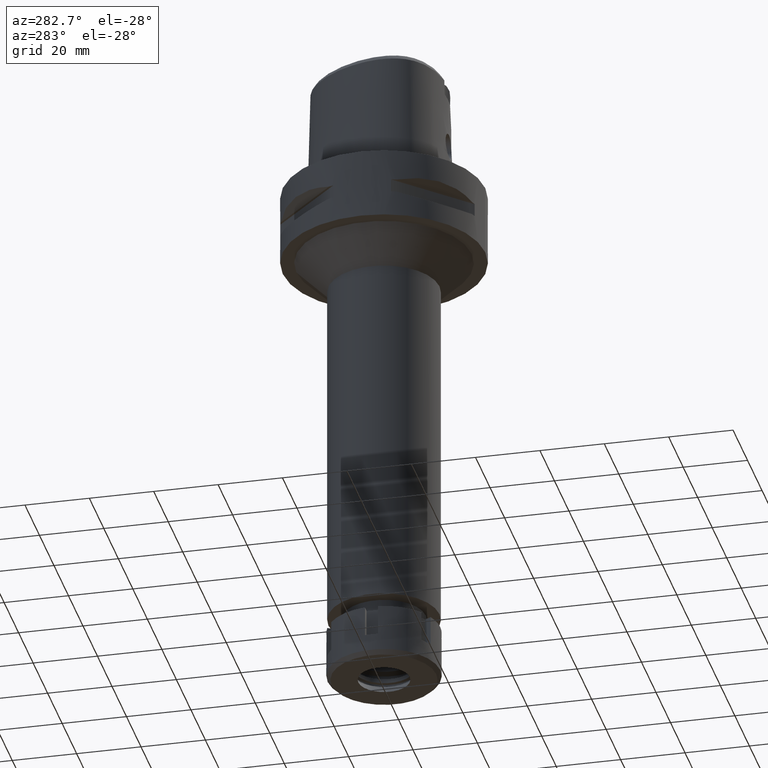
[diagram: clean part render]
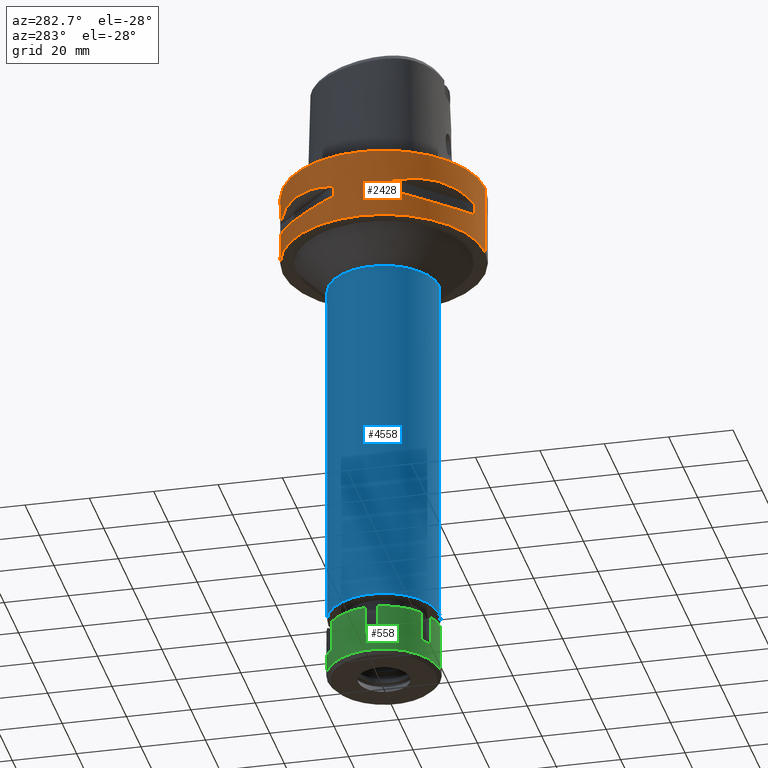
[diagram: same view with three faces highlighted in distinct colors, each labeled with its STEP entity id]
A machine part, auxiliary view with three faces highlighted in distinct colors.
Their STEP definitions:

[orange] entity #2428 — the highlighted cylindrical surface (partial cylindrical patch) has radius 31.5 mm, axis along (0, 0, -1).
#5 = DIRECTION ( 'NONE',  ( 0.0000000000000000000, 1.000000000000000000, 0.0000000000000000000 ) ) ;
#7 = CARTESIAN_POINT ( 'NONE',  ( -11.58970337493613378, 29.31542262584994418, -14.35229357166721265 ) ) ;
#40 = CIRCLE ( 'NONE', #2492, 31.50000000000001776 ) ;
#133 = VECTOR ( 'NONE', #883, 1000.000000000000000 ) ;
#138 = DIRECTION ( 'NONE',  ( -0.3316748332540863653, -0.9433937698468619626, 0.0000000000000000000 ) ) ;
#154 = CARTESIAN_POINT ( 'NONE',  ( -29.71690375017999841, -10.44775724750000023, -9.949999999998999201 ) ) ;
#182 = CARTESIAN_POINT ( 'NONE',  ( -20.64154884321404637, -23.90617837153842729, -8.160613588488567771 ) ) ;
#241 = EDGE_CURVE ( 'NONE', #5182, #3362, #3990, .T. ) ;
#265 = CARTESIAN_POINT ( 'NONE',  ( -29.71690375017999841, -10.44775724750000023, -14.05000000000000071 ) ) ;
#301 = ORIENTED_EDGE ( 'NONE', *, *, #4077, .T. ) ;
#342 = CARTESIAN_POINT ( 'NONE',  ( 0.0000000000000000000, 1.320781572880000066E-14, 7.849999999999999645 ) ) ;
#363 = VERTEX_POINT ( 'NONE', #3418 ) ;
#371 = DIRECTION ( 'NONE',  ( 0.0000000000000000000, 0.0000000000000000000, -1.000000000000000000 ) ) ;
#387 = AXIS2_PLACEMENT_3D ( 'NONE', #2405, #2852, #1218 ) ;
#406 = ORIENTED_EDGE ( 'NONE', *, *, #2208, .F. ) ;
#407 = CARTESIAN_POINT ( 'NONE',  ( 0.0000000000000000000, -31.50000000000000000, -22.00000000000000000 ) ) ;
#409 = CARTESIAN_POINT ( 'NONE',  ( -16.48208282228564769, 26.84474411198887012, -15.34094883777873619 ) ) ;
#415 = ORIENTED_EDGE ( 'NONE', *, *, #2018, .F. ) ;
#420 = EDGE_CURVE ( 'NONE', #1539, #2439, #2476, .T. ) ;
#428 = CARTESIAN_POINT ( 'NONE',  ( -29.71690375017999841, -10.44775724750000023, -14.05000000000000071 ) ) ;
#440 = CARTESIAN_POINT ( 'NONE',  ( -15.11986997308662595, 27.64634172018752523, -15.11207862403231239 ) ) ;
#443 = CARTESIAN_POINT ( 'NONE',  ( -26.58330558444411906, -16.89910283486596754, -15.40446471307235754 ) ) ;
#481 = DIRECTION ( 'NONE',  ( 0.0000000000000000000, 0.0000000000000000000, 1.000000000000000000 ) ) ;
#494 = CARTESIAN_POINT ( 'NONE',  ( -8.981198972017999438, -30.19251670572000279, -9.950000000000001066 ) ) ;
#537 = ORIENTED_EDGE ( 'NONE', *, *, #241, .T. ) ;
#553 = CARTESIAN_POINT ( 'NONE',  ( -30.19251670572000279, 8.981198972017999438, -9.950000000000001066 ) ) ;
#590 = CARTESIAN_POINT ( 'NONE',  ( -12.70097436174568983, -28.92472615208535558, -9.353533115229671679 ) ) ;
#613 = DIRECTION ( 'NONE',  ( 0.0000000000000000000, 0.0000000000000000000, 1.000000000000000000 ) ) ;
#670 = CARTESIAN_POINT ( 'NONE',  ( -28.92472615202281716, 12.70097436192362572, -9.353533115182571578 ) ) ;
#690 = VERTEX_POINT ( 'NONE', #912 ) ;
#739 = VERTEX_POINT ( 'NONE', #2358 ) ;
#763 = CARTESIAN_POINT ( 'NONE',  ( -27.64634172018421410, -15.11986997309601577, -15.11207862403482238 ) ) ;
#806 = DIRECTION ( 'NONE',  ( 0.0000000000000000000, -1.000000000000000000, 0.0000000000000000000 ) ) ;
#817 = CARTESIAN_POINT ( 'NONE',  ( -26.60451452154760332, -16.86571563436626064, -15.39949295786003347 ) ) ;
#835 = CARTESIAN_POINT ( 'NONE',  ( -13.25636937902232404, 28.62019653469382163, -14.74888225540932751 ) ) ;
#879 = EDGE_CURVE ( 'NONE', #4183, #3318, #4366, .T. ) ;
#883 = DIRECTION ( 'NONE',  ( 0.0000000000000000000, 0.0000000000000000000, -1.000000000000000000 ) ) ;
#896 = VERTEX_POINT ( 'NONE', #428 ) ;
#898 = EDGE_CURVE ( 'NONE', #1816, #3375, #3569, .T. ) ;
#912 = CARTESIAN_POINT ( 'NONE',  ( -8.981198972017999438, 30.19251670572000279, -14.05000000000000071 ) ) ;
#937 = CARTESIAN_POINT ( 'NONE',  ( 0.0000000000000000000, 1.320781572880000066E-14, -9.950000000000001066 ) ) ;
#975 = CARTESIAN_POINT ( 'NONE',  ( -28.91382665368626093, 12.73197616788979047, -14.65467361754097197 ) ) ;
#982 = ORIENTED_EDGE ( 'NONE', *, *, #2148, .F. ) ;
#1018 = DIRECTION ( 'NONE',  ( 0.0000000000000000000, 0.0000000000000000000, 1.000000000000000000 ) ) ;
#1023 = FACE_OUTER_BOUND ( 'NONE', #3286, .T. ) ;
#1058 = DIRECTION ( 'NONE',  ( 0.0000000000000000000, 0.0000000000000000000, -1.000000000000000000 ) ) ;
#1065 = CARTESIAN_POINT ( 'NONE',  ( -25.37272068390332436, 18.81462633043442878, -8.309724968561161162 ) ) ;
#1071 = EDGE_CURVE ( 'NONE', #739, #5182, #40, .T. ) ;
#1102 = ORIENTED_EDGE ( 'NONE', *, *, #879, .T. ) ;
#1135 = AXIS2_PLACEMENT_3D ( 'NONE', #4037, #1018, #2243 ) ;
#1211 = CARTESIAN_POINT ( 'NONE',  ( -27.86285265926284893, 14.89252659058025685, -15.10765629752004813 ) ) ;
#1218 = DIRECTION ( 'NONE',  ( 0.0000000000000000000, -1.000000000000000000, 0.0000000000000000000 ) ) ;
#1262 = ORIENTED_EDGE ( 'NONE', *, *, #2221, .F. ) ;
#1268 = CARTESIAN_POINT ( 'NONE',  ( -16.89910283486545950, 26.58330558444438907, -15.40446471307224030 ) ) ;
#1270 = EDGE_CURVE ( 'NONE', #363, #1923, #3305, .T. ) ;
#1326 = CARTESIAN_POINT ( 'NONE',  ( 0.0000000000000000000, 1.320781572880000066E-14, -14.05000000000000071 ) ) ;
#1361 = EDGE_CURVE ( 'NONE', #3362, #3957, #1589, .T. ) ;
#1373 = CARTESIAN_POINT ( 'NONE',  ( -29.71690375017999841, 10.44775724750000023, -14.05000000000000071 ) ) ;
#1447 = ORIENTED_EDGE ( 'NONE', *, *, #4750, .T. ) ;
#1500 = VECTOR ( 'NONE', #4428, 1000.000000000000000 ) ;
#1539 = VERTEX_POINT ( 'NONE', #2518 ) ;
#1575 = CARTESIAN_POINT ( 'NONE',  ( -23.90617837140510105, 20.64154884334740458, -8.160613588441464117 ) ) ;
#1582 = CARTESIAN_POINT ( 'NONE',  ( -29.31542262584746794, -11.58970337494326941, -14.35229357166913999 ) ) ;
#1589 = CIRCLE ( 'NONE', #5087, 31.50000000000000711 ) ;
#1607 = CARTESIAN_POINT ( 'NONE',  ( -12.70092055722009761, 28.92474506847810645, -9.353547358250267507 ) ) ;
#1619 = ORIENTED_EDGE ( 'NONE', *, *, #5222, .T. ) ;
#1636 = CARTESIAN_POINT ( 'NONE',  ( -14.89252659053665440, -27.86285265927818600, -15.10765629750852135 ) ) ;
#1683 = VERTEX_POINT ( 'NONE', #5563 ) ;
#1691 = CARTESIAN_POINT ( 'NONE',  ( -30.19251670572000279, 8.981198972019999616, -14.05000000000000071 ) ) ;
#1692 = CARTESIAN_POINT ( 'NONE',  ( -17.05047092244293694, -26.48642424310493837, -15.42670883407686588 ) ) ;
#1740 = CARTESIAN_POINT ( 'NONE',  ( -25.32725744469575702, -18.86897208070564247, -15.69588095933118943 ) ) ;
#1816 = VERTEX_POINT ( 'NONE', #1691 ) ;
#1905 = CARTESIAN_POINT ( 'NONE',  ( -10.44775724750000023, 29.71690375017999841, -9.949999999998999201 ) ) ;
#1921 = ORIENTED_EDGE ( 'NONE', *, *, #1071, .T. ) ;
#1923 = VERTEX_POINT ( 'NONE', #2705 ) ;
#1940 = AXIS2_PLACEMENT_3D ( 'NONE', #4372, #481, #5207 ) ;
#2018 = EDGE_CURVE ( 'NONE', #4418, #3957, #4488, .T. ) ;
#2050 = ORIENTED_EDGE ( 'NONE', *, *, #1361, .T. ) ;
#2056 = CARTESIAN_POINT ( 'NONE',  ( -24.23018836745279714, 20.18579225685798306, -15.78559396978850415 ) ) ;
#2072 = DIRECTION ( 'NONE',  ( 0.0000000000000000000, 0.0000000000000000000, -1.000000000000000000 ) ) ;
#2086 = CARTESIAN_POINT ( 'NONE',  ( -18.59229662065495958, -25.43927894891979946, -15.62866126334684580 ) ) ;
#2094 = LINE ( 'NONE', #5516, #5172 ) ;
#2141 = CARTESIAN_POINT ( 'NONE',  ( -20.65093790435807364, 23.89673728056094859, -15.83935804902020550 ) ) ;
#2148 = EDGE_CURVE ( 'NONE', #1816, #3318, #2094, .T. ) ;
#2166 = CARTESIAN_POINT ( 'NONE',  ( -18.86897208073744991, 25.32725744467937545, -15.69588095933747240 ) ) ;
#2208 = EDGE_CURVE ( 'NONE', #739, #1683, #2724, .T. ) ;
#2221 = EDGE_CURVE ( 'NONE', #4866, #4614, #5382, .T. ) ;
#2237 = B_SPLINE_CURVE_WITH_KNOTS ( 'NONE', 3,
 ( #1905, #1607, #4109, #4051, #3243, #1575, #1065, #5333, #670, #3218 ),
 .UNSPECIFIED., .F., .F.,
 ( 4, 2, 2, 2, 4 ),
 ( 0.0000000000000000000, 0.2500000000000000000, 0.5000000000000000000, 0.7500000000000000000, 1.000000000000000000 ),
 .UNSPECIFIED. ) ;
#2241 = DIRECTION ( 'NONE',  ( 0.0000000000000000000, 0.0000000000000000000, -1.000000000000000000 ) ) ;
#2243 = DIRECTION ( 'NONE',  ( -0.2851174276831918153, 0.9584925938322735872, 0.0000000000000000000 ) ) ;
#2261 = CARTESIAN_POINT ( 'NONE',  ( -27.88214534463898175, -14.84422749211551640, -8.906206096462613075 ) ) ;
#2286 = CARTESIAN_POINT ( 'NONE',  ( -23.90617837153842729, -20.64154884321405703, -8.160627831286134892 ) ) ;
#2298 = ORIENTED_EDGE ( 'NONE', *, *, #2791, .F. ) ;
#2336 = FACE_BOUND ( 'NONE', #3116, .T. ) ;
#2358 = CARTESIAN_POINT ( 'NONE',  ( -30.19251670572000279, -8.981198972019999616, -9.950000000000001066 ) ) ;
#2394 = VECTOR ( 'NONE', #371, 1000.000000000000000 ) ;
#2396 = CARTESIAN_POINT ( 'NONE',  ( -8.981198972019999616, -30.19251670572000279, -14.05000000000000071 ) ) ;
#2405 = CARTESIAN_POINT ( 'NONE',  ( 0.0000000000000000000, 1.320781572880000066E-14, -2.131628207279999844E-14 ) ) ;
#2408 = DIRECTION ( 'NONE',  ( -0.9584925938322735872, -0.2851174276831918153, 0.0000000000000000000 ) ) ;
#2410 = CARTESIAN_POINT ( 'NONE',  ( 0.0000000000000000000, -31.50000000000000000, -2.131628207279999844E-14 ) ) ;
#2416 = CARTESIAN_POINT ( 'NONE',  ( 0.0000000000000000000, -31.50000000000000000, -1.125025998286999896E-14 ) ) ;
#2428 = ADVANCED_FACE ( 'NONE', ( #1023, #4461, #2336 ), #4042, .T. ) ;
#2439 = VERTEX_POINT ( 'NONE', #4665 ) ;
#2470 = CARTESIAN_POINT ( 'NONE',  ( 0.0000000000000000000, 1.320781572880000066E-14, -14.05000000000000071 ) ) ;
#2476 = LINE ( 'NONE', #3747, #2394 ) ;
#2485 = CARTESIAN_POINT ( 'NONE',  ( -27.11872488589304453, -16.03138450078185429, -15.26880420107623237 ) ) ;
#2492 = AXIS2_PLACEMENT_3D ( 'NONE', #4591, #4230, #2408 ) ;
#2518 = CARTESIAN_POINT ( 'NONE',  ( 0.0000000000000000000, 31.50000000000000000, -2.131628207279999844E-14 ) ) ;
#2542 = CARTESIAN_POINT ( 'NONE',  ( -26.70521063584532229, -16.70616724745790549, -15.37546661817682292 ) ) ;
#2554 = CARTESIAN_POINT ( 'NONE',  ( -10.44775724750000023, 29.71690375017999841, -14.05000000000000071 ) ) ;
#2564 = CARTESIAN_POINT ( 'NONE',  ( -16.03138450077636534, 27.11872488589498786, -15.26880420107476333 ) ) ;
#2571 = DIRECTION ( 'NONE',  ( -0.2851174276831918153, -0.9584925938322735872, 0.0000000000000000000 ) ) ;
#2582 = VERTEX_POINT ( 'NONE', #2554 ) ;
#2623 = DIRECTION ( 'NONE',  ( -0.9433937698468619626, -0.3316748332540863653, 0.0000000000000000000 ) ) ;
#2652 = AXIS2_PLACEMENT_3D ( 'NONE', #1326, #4653, #2571 ) ;
#2668 = AXIS2_PLACEMENT_3D ( 'NONE', #3876, #2241, #4708 ) ;
#2705 = CARTESIAN_POINT ( 'NONE',  ( -10.44775724750000023, 29.71690375017999841, -9.949999999998999201 ) ) ;
#2712 = CARTESIAN_POINT ( 'NONE',  ( -25.37277178159835955, -18.81455742174598456, -8.309746333092061121 ) ) ;
#2724 = LINE ( 'NONE', #3658, #3668 ) ;
#2728 = CARTESIAN_POINT ( 'NONE',  ( -8.981198972017999438, -30.19251670572000279, -14.05000000000000071 ) ) ;
#2791 = EDGE_CURVE ( 'NONE', #363, #690, #4446, .T. ) ;
#2852 = DIRECTION ( 'NONE',  ( 0.0000000000000000000, 0.0000000000000000000, -1.000000000000000000 ) ) ;
#2860 = ORIENTED_EDGE ( 'NONE', *, *, #3083, .F. ) ;
#2908 = CARTESIAN_POINT ( 'NONE',  ( -28.62019653468943048, -13.25636937903484203, -14.74888225541266884 ) ) ;
#3008 = AXIS2_PLACEMENT_3D ( 'NONE', #5528, #5049, #5 ) ;
#3031 = VECTOR ( 'NONE', #613, 1000.000000000000000 ) ;
#3083 = EDGE_CURVE ( 'NONE', #896, #3763, #3270, .T. ) ;
#3116 = EDGE_LOOP ( 'NONE', ( #2050, #415, #3371, #2860, #4091, #406, #1921, #537 ) ) ;
#3128 = AXIS2_PLACEMENT_3D ( 'NONE', #3183, #4801, #2623 ) ;
#3183 = CARTESIAN_POINT ( 'NONE',  ( 0.0000000000000000000, 1.320781572880000066E-14, -14.05000000000000071 ) ) ;
#3218 = CARTESIAN_POINT ( 'NONE',  ( -29.71690375017999841, 10.44775724750000023, -9.949999999998999201 ) ) ;
#3243 = CARTESIAN_POINT ( 'NONE',  ( -20.64154884334740103, 23.90617837140510460, -8.160627831333236770 ) ) ;
#3270 = B_SPLINE_CURVE_WITH_KNOTS ( 'NONE', 3,
 ( #265, #1582, #2908, #763, #2485, #3644, #2542, #4250, #817, #443, #1740, #3813, #3395, #5167, #2086, #4726, #3476, #5506, #1692, #3448, #4751, #1636, #5115, #5090 ),
 .UNSPECIFIED., .F., .F.,
 ( 4, 1, 1, 1, 1, 1, 2, 2, 2, 1, 1, 1, 1, 1, 2, 2, 4 ),
 ( 0.0000000000000000000, 0.1250000000000055511, 0.1875000000000083267, 0.2187500000000097977, 0.2343750000000106304, 0.2421875000000108247, 0.2460937500000108524, 0.2500000000000108802, 0.5000000000000087708, 0.6250000000000075495, 0.6875000000000071054, 0.7187500000000067724, 0.7343750000000066613, 0.7421875000000065503, 0.7460937500000062172, 0.7500000000000059952, 1.000000000000000000 ),
 .UNSPECIFIED. ) ;
#3275 = CIRCLE ( 'NONE', #4340, 31.50000000000000711 ) ;
#3286 = EDGE_LOOP ( 'NONE', ( #1447, #1262, #1619, #5379 ) ) ;
#3294 = EDGE_CURVE ( 'NONE', #896, #1683, #4815, .T. ) ;
#3305 = CIRCLE ( 'NONE', #1135, 31.50000000000001776 ) ;
#3318 = VERTEX_POINT ( 'NONE', #553 ) ;
#3357 = CARTESIAN_POINT ( 'NONE',  ( -26.52527364208584615, 16.98999780422065342, -15.41788098766309467 ) ) ;
#3362 = VERTEX_POINT ( 'NONE', #4851 ) ;
#3371 = ORIENTED_EDGE ( 'NONE', *, *, #5299, .T. ) ;
#3375 = VERTEX_POINT ( 'NONE', #1373 ) ;
#3376 = CIRCLE ( 'NONE', #387, 31.50000000000000000 ) ;
#3395 = CARTESIAN_POINT ( 'NONE',  ( -21.46242677078364025, -23.08532645888299939, -15.83938991065501867 ) ) ;
#3418 = CARTESIAN_POINT ( 'NONE',  ( -8.981198972019999616, 30.19251670572000279, -9.950000000000001066 ) ) ;
#3444 = CARTESIAN_POINT ( 'NONE',  ( -23.08532645888017854, 21.46242677077873751, -15.83938991065184076 ) ) ;
#3448 = CARTESIAN_POINT ( 'NONE',  ( -16.98999780422095540, -26.52527364208602734, -15.41788098766330783 ) ) ;
#3476 = CARTESIAN_POINT ( 'NONE',  ( -17.35163608579889072, -26.29071741523761929, -15.46976201925527761 ) ) ;
#3569 = CIRCLE ( 'NONE', #2668, 31.50000000000001776 ) ;
#3623 = DIRECTION ( 'NONE',  ( 0.0000000000000000000, 0.0000000000000000000, 1.000000000000000000 ) ) ;
#3644 = CARTESIAN_POINT ( 'NONE',  ( -26.84474411198783628, -16.48208282228858224, -15.34094883777952667 ) ) ;
#3658 = CARTESIAN_POINT ( 'NONE',  ( -30.19251670572000279, -8.981198972017999438, -9.950000000000001066 ) ) ;
#3668 = VECTOR ( 'NONE', #1058, 1000.000000000000000 ) ;
#3677 = CARTESIAN_POINT ( 'NONE',  ( -29.71690375017999841, -10.44775724750000023, -9.949999999998999201 ) ) ;
#3747 = CARTESIAN_POINT ( 'NONE',  ( 0.0000000000000000000, 31.50000000000000000, -1.125025998286999896E-14 ) ) ;
#3763 = VERTEX_POINT ( 'NONE', #5334 ) ;
#3786 = CARTESIAN_POINT ( 'NONE',  ( -26.42800887047508240, 17.14106442934706820, -15.43984550238465836 ) ) ;
#3813 = CARTESIAN_POINT ( 'NONE',  ( -23.89673728055121416, -20.65093790435243193, -15.83935804901394739 ) ) ;
#3824 = ORIENTED_EDGE ( 'NONE', *, *, #3900, .F. ) ;
#3865 = CARTESIAN_POINT ( 'NONE',  ( -25.43927894891607622, 18.59229662064853983, -15.62866126334269623 ) ) ;
#3876 = CARTESIAN_POINT ( 'NONE',  ( 0.0000000000000000000, 1.320781572880000066E-14, -14.05000000000000071 ) ) ;
#3888 = CARTESIAN_POINT ( 'NONE',  ( -26.01217882834653139, 17.76952662671834915, -15.52665221626015501 ) ) ;
#3900 = EDGE_CURVE ( 'NONE', #2582, #3375, #5309, .T. ) ;
#3957 = VERTEX_POINT ( 'NONE', #494 ) ;
#3990 = B_SPLINE_CURVE_WITH_KNOTS ( 'NONE', 3,
 ( #154, #4832, #2261, #2712, #2286, #182, #5253, #5202, #590, #4472 ),
 .UNSPECIFIED., .F., .F.,
 ( 4, 2, 2, 2, 4 ),
 ( 0.0000000000000000000, 0.2500000000000000000, 0.5000000000000000000, 0.7500000000000000000, 1.000000000000000000 ),
 .UNSPECIFIED. ) ;
#4037 = CARTESIAN_POINT ( 'NONE',  ( 0.0000000000000000000, 1.320781572880000066E-14, -9.950000000000001066 ) ) ;
#4042 = CYLINDRICAL_SURFACE ( 'NONE', #4550, 31.50000000000000000 ) ;
#4051 = CARTESIAN_POINT ( 'NONE',  ( -18.81455742151814192, 25.37277178176733372, -8.309746333162712162 ) ) ;
#4077 = EDGE_CURVE ( 'NONE', #2582, #690, #3275, .T. ) ;
#4091 = ORIENTED_EDGE ( 'NONE', *, *, #3294, .T. ) ;
#4109 = CARTESIAN_POINT ( 'NONE',  ( -14.84422749186513713, 27.88214534477230444, -8.906206096533262340 ) ) ;
#4132 = ORIENTED_EDGE ( 'NONE', *, *, #1270, .T. ) ;
#4183 = VERTEX_POINT ( 'NONE', #4533 ) ;
#4191 = CARTESIAN_POINT ( 'NONE',  ( -16.80193241490443157, 26.64486562695815053, -15.38992683735661515 ) ) ;
#4230 = DIRECTION ( 'NONE',  ( 0.0000000000000000000, 0.0000000000000000000, 1.000000000000000000 ) ) ;
#4250 = CARTESIAN_POINT ( 'NONE',  ( -26.64486562695783789, -16.80193241490531975, -15.38992683735687272 ) ) ;
#4274 = CARTESIAN_POINT ( 'NONE',  ( -10.44775724750000023, 29.71690375017999841, -14.05000000000000071 ) ) ;
#4340 = AXIS2_PLACEMENT_3D ( 'NONE', #2470, #5104, #5522 ) ;
#4366 = CIRCLE ( 'NONE', #1940, 31.50000000000000711 ) ;
#4372 = CARTESIAN_POINT ( 'NONE',  ( 0.0000000000000000000, 1.320781572880000066E-14, -9.950000000000001066 ) ) ;
#4407 = EDGE_CURVE ( 'NONE', #1923, #4183, #2237, .T. ) ;
#4418 = VERTEX_POINT ( 'NONE', #2396 ) ;
#4428 = DIRECTION ( 'NONE',  ( 0.0000000000000000000, 0.0000000000000000000, -1.000000000000000000 ) ) ;
#4446 = LINE ( 'NONE', #4736, #133 ) ;
#4461 = FACE_BOUND ( 'NONE', #5206, .T. ) ;
#4472 = CARTESIAN_POINT ( 'NONE',  ( -10.44775724750000023, -29.71690375017999841, -9.949999999998999201 ) ) ;
#4488 = LINE ( 'NONE', #2728, #3031 ) ;
#4522 = CIRCLE ( 'NONE', #3008, 31.50000000000000000 ) ;
#4533 = CARTESIAN_POINT ( 'NONE',  ( -29.71690375017999841, 10.44775724750000023, -9.949999999998999201 ) ) ;
#4550 = AXIS2_PLACEMENT_3D ( 'NONE', #342, #2072, #806 ) ;
#4591 = CARTESIAN_POINT ( 'NONE',  ( 0.0000000000000000000, 1.320781572880000066E-14, -9.950000000000001066 ) ) ;
#4614 = VERTEX_POINT ( 'NONE', #407 ) ;
#4653 = DIRECTION ( 'NONE',  ( 0.0000000000000000000, 0.0000000000000000000, -1.000000000000000000 ) ) ;
#4661 = DIRECTION ( 'NONE',  ( 0.0000000000000000000, 0.0000000000000000000, 1.000000000000000000 ) ) ;
#4665 = CARTESIAN_POINT ( 'NONE',  ( 0.0000000000000000000, 31.50000000000000000, -22.00000000000000000 ) ) ;
#4708 = DIRECTION ( 'NONE',  ( -0.9584925938322735872, 0.2851174276831918153, 0.0000000000000000000 ) ) ;
#4726 = CARTESIAN_POINT ( 'NONE',  ( -17.76952662672209371, -26.01217882834868433, -15.52665221626257264 ) ) ;
#4736 = CARTESIAN_POINT ( 'NONE',  ( -8.981198972017999438, 30.19251670572000279, -9.950000000000001066 ) ) ;
#4750 = EDGE_CURVE ( 'NONE', #2439, #4614, #4522, .T. ) ;
#4751 = CARTESIAN_POINT ( 'NONE',  ( -16.96123479564984748, -26.54368690921626950, -15.41365572341332424 ) ) ;
#4783 = ORIENTED_EDGE ( 'NONE', *, *, #898, .T. ) ;
#4801 = DIRECTION ( 'NONE',  ( 0.0000000000000000000, 0.0000000000000000000, -1.000000000000000000 ) ) ;
#4815 = CIRCLE ( 'NONE', #3128, 31.50000000000000711 ) ;
#4828 = ORIENTED_EDGE ( 'NONE', *, *, #4407, .T. ) ;
#4832 = CARTESIAN_POINT ( 'NONE',  ( -28.92474506841556092, -12.70092055739798376, -9.353547358203167406 ) ) ;
#4851 = CARTESIAN_POINT ( 'NONE',  ( -10.44775724750000023, -29.71690375017999841, -9.949999999998999201 ) ) ;
#4866 = VERTEX_POINT ( 'NONE', #2410 ) ;
#5026 = CARTESIAN_POINT ( 'NONE',  ( -26.29071741523646111, 17.35163608579689409, -15.46976201925398087 ) ) ;
#5049 = DIRECTION ( 'NONE',  ( 0.0000000000000000000, 0.0000000000000000000, 1.000000000000000000 ) ) ;
#5051 = CARTESIAN_POINT ( 'NONE',  ( -26.54368690921649687, 16.96123479564916892, -15.41365572341313239 ) ) ;
#5066 = CIRCLE ( 'NONE', #2652, 31.50000000000001776 ) ;
#5087 = AXIS2_PLACEMENT_3D ( 'NONE', #937, #3623, #138 ) ;
#5090 = CARTESIAN_POINT ( 'NONE',  ( -10.44775724750000023, -29.71690375017999841, -14.05000000000000071 ) ) ;
#5104 = DIRECTION ( 'NONE',  ( 0.0000000000000000000, 0.0000000000000000000, -1.000000000000000000 ) ) ;
#5112 = CARTESIAN_POINT ( 'NONE',  ( -16.70616724745637072, 26.70521063584585164, -15.37546661817639126 ) ) ;
#5115 = CARTESIAN_POINT ( 'NONE',  ( -12.73197616784617381, -28.91382665370159799, -14.65467361752943809 ) ) ;
#5167 = CARTESIAN_POINT ( 'NONE',  ( -20.18579225686653444, -24.23018836745773541, -15.78559396979401974 ) ) ;
#5172 = VECTOR ( 'NONE', #4661, 1000.000000000000000 ) ;
#5182 = VERTEX_POINT ( 'NONE', #3677 ) ;
#5193 = CARTESIAN_POINT ( 'NONE',  ( -29.71690375017999841, 10.44775724750000023, -14.05000000000000071 ) ) ;
#5202 = CARTESIAN_POINT ( 'NONE',  ( -14.84430321566181910, -27.88210502990660444, -8.906184732002365934 ) ) ;
#5206 = EDGE_LOOP ( 'NONE', ( #1102, #982, #4783, #3824, #301, #2298, #4132, #4828 ) ) ;
#5207 = DIRECTION ( 'NONE',  ( -0.9433937698468619626, 0.3316748332540863653, 0.0000000000000000000 ) ) ;
#5222 = EDGE_CURVE ( 'NONE', #4866, #1539, #3376, .T. ) ;
#5253 = CARTESIAN_POINT ( 'NONE',  ( -18.81462633020657194, -25.37272068407227010, -8.309724968631812203 ) ) ;
#5299 = EDGE_CURVE ( 'NONE', #4418, #3763, #5066, .T. ) ;
#5309 = B_SPLINE_CURVE_WITH_KNOTS ( 'NONE', 3,
 ( #4274, #7, #835, #440, #2564, #409, #5112, #4191, #5557, #1268, #2166, #2141, #3444, #2056, #3865, #3888, #5026, #3786, #5477, #3357, #5051, #1211, #975, #5193 ),
 .UNSPECIFIED., .F., .F.,
 ( 4, 1, 1, 1, 1, 1, 2, 2, 2, 1, 1, 1, 1, 1, 2, 2, 4 ),
 ( 0.0000000000000000000, 0.1249999999999950040, 0.1874999999999924505, 0.2187499999999911737, 0.2343749999999902855, 0.2421874999999899802, 0.2460937499999900080, 0.2499999999999900080, 0.4999999999999917843, 0.6249999999999925615, 0.6874999999999925615, 0.7187499999999924505, 0.7343749999999926725, 0.7421874999999927836, 0.7460937499999928946, 0.7499999999999931166, 1.000000000000000000 ),
 .UNSPECIFIED. ) ;
#5333 = CARTESIAN_POINT ( 'NONE',  ( -27.88210502977331373, 14.84430321591221613, -8.906184731931714893 ) ) ;
#5334 = CARTESIAN_POINT ( 'NONE',  ( -10.44775724750000023, -29.71690375017999841, -14.05000000000000071 ) ) ;
#5379 = ORIENTED_EDGE ( 'NONE', *, *, #420, .T. ) ;
#5382 = LINE ( 'NONE', #2416, #1500 ) ;
#5477 = CARTESIAN_POINT ( 'NONE',  ( -26.48642424310458665, 17.05047092244234008, -15.42670883407647509 ) ) ;
#5506 = CARTESIAN_POINT ( 'NONE',  ( -17.14106442934810204, -26.42800887047570058, -15.43984550238532982 ) ) ;
#5516 = CARTESIAN_POINT ( 'NONE',  ( -30.19251670572000279, 8.981198972017999438, -14.05000000000000071 ) ) ;
#5522 = DIRECTION ( 'NONE',  ( -0.3316748332540863653, 0.9433937698468619626, 0.0000000000000000000 ) ) ;
#5528 = CARTESIAN_POINT ( 'NONE',  ( 0.0000000000000000000, 1.320781572880000066E-14, -22.00000000000000000 ) ) ;
#5557 = CARTESIAN_POINT ( 'NONE',  ( -16.86571563436579169, 26.60451452154777030, -15.39949295785988426 ) ) ;
#5563 = CARTESIAN_POINT ( 'NONE',  ( -30.19251670572000279, -8.981198972017999438, -14.05000000000000071 ) ) ;

[blue] entity #4558 — the highlighted cylindrical surface (partial cylindrical patch) has radius 17.25 mm, axis along (0, 0, -1).
#121 = CARTESIAN_POINT ( 'NONE',  ( 0.0000000000000000000, 1.320781572880000066E-14, -144.5000000000000000 ) ) ;
#166 = VERTEX_POINT ( 'NONE', #2971 ) ;
#238 = DIRECTION ( 'NONE',  ( 0.0000000000000000000, 0.0000000000000000000, -1.000000000000000000 ) ) ;
#585 = DIRECTION ( 'NONE',  ( 0.0000000000000000000, 1.000000000000000000, 0.0000000000000000000 ) ) ;
#645 = CYLINDRICAL_SURFACE ( 'NONE', #5417, 17.25000000000000000 ) ;
#1035 = CARTESIAN_POINT ( 'NONE',  ( 0.0000000000000000000, 17.25000000000000000, -32.00000000000000000 ) ) ;
#1089 = DIRECTION ( 'NONE',  ( 0.0000000000000000000, 0.0000000000000000000, -1.000000000000000000 ) ) ;
#1105 = ORIENTED_EDGE ( 'NONE', *, *, #4589, .T. ) ;
#1122 = CARTESIAN_POINT ( 'NONE',  ( 0.0000000000000000000, 0.0000000000000000000, -32.00000000000000000 ) ) ;
#1153 = CARTESIAN_POINT ( 'NONE',  ( 0.0000000000000000000, 1.320781572880000066E-14, 7.849999999999999645 ) ) ;
#1511 = VECTOR ( 'NONE', #5038, 1000.000000000000000 ) ;
#1657 = CIRCLE ( 'NONE', #3825, 17.25000000000000000 ) ;
#2019 = DIRECTION ( 'NONE',  ( 0.0000000000000000000, 0.0000000000000000000, -1.000000000000000000 ) ) ;
#2066 = CARTESIAN_POINT ( 'NONE',  ( 0.0000000000000000000, -17.25000000000000000, -32.00000000000000000 ) ) ;
#2079 = EDGE_CURVE ( 'NONE', #4852, #166, #5465, .T. ) ;
#2843 = DIRECTION ( 'NONE',  ( 0.0000000000000000000, -1.000000000000000000, 0.0000000000000000000 ) ) ;
#2896 = VERTEX_POINT ( 'NONE', #4494 ) ;
#2917 = EDGE_CURVE ( 'NONE', #5561, #2896, #4115, .T. ) ;
#2940 = ORIENTED_EDGE ( 'NONE', *, *, #2079, .F. ) ;
#2971 = CARTESIAN_POINT ( 'NONE',  ( 0.0000000000000000000, -17.25000000000000000, -144.5000000000000000 ) ) ;
#3000 = CIRCLE ( 'NONE', #4702, 17.25000000000000000 ) ;
#3381 = ORIENTED_EDGE ( 'NONE', *, *, #2917, .T. ) ;
#3408 = VECTOR ( 'NONE', #238, 1000.000000000000000 ) ;
#3507 = EDGE_CURVE ( 'NONE', #2896, #166, #3000, .T. ) ;
#3825 = AXIS2_PLACEMENT_3D ( 'NONE', #1122, #1089, #2843 ) ;
#4115 = LINE ( 'NONE', #5419, #3408 ) ;
#4260 = EDGE_LOOP ( 'NONE', ( #4860, #2940, #1105, #3381 ) ) ;
#4494 = CARTESIAN_POINT ( 'NONE',  ( 0.0000000000000000000, 17.25000000000000000, -144.5000000000000000 ) ) ;
#4505 = CARTESIAN_POINT ( 'NONE',  ( 0.0000000000000000000, -17.25000000000000000, -32.00000000000000000 ) ) ;
#4558 = ADVANCED_FACE ( 'NONE', ( #4963 ), #645, .T. ) ;
#4589 = EDGE_CURVE ( 'NONE', #4852, #5561, #1657, .T. ) ;
#4702 = AXIS2_PLACEMENT_3D ( 'NONE', #121, #5278, #585 ) ;
#4852 = VERTEX_POINT ( 'NONE', #2066 ) ;
#4860 = ORIENTED_EDGE ( 'NONE', *, *, #3507, .T. ) ;
#4911 = DIRECTION ( 'NONE',  ( 0.0000000000000000000, -1.000000000000000000, 0.0000000000000000000 ) ) ;
#4963 = FACE_OUTER_BOUND ( 'NONE', #4260, .T. ) ;
#5038 = DIRECTION ( 'NONE',  ( 0.0000000000000000000, 0.0000000000000000000, -1.000000000000000000 ) ) ;
#5278 = DIRECTION ( 'NONE',  ( 0.0000000000000000000, 0.0000000000000000000, 1.000000000000000000 ) ) ;
#5417 = AXIS2_PLACEMENT_3D ( 'NONE', #1153, #2019, #4911 ) ;
#5419 = CARTESIAN_POINT ( 'NONE',  ( 0.0000000000000000000, 17.25000000000000000, -32.00000000000000000 ) ) ;
#5465 = LINE ( 'NONE', #4505, #1511 ) ;
#5561 = VERTEX_POINT ( 'NONE', #1035 ) ;

[green] entity #558 — the highlighted cylindrical surface (partial cylindrical patch) has radius 17.5 mm, axis along (0, 0, -1).
#109 = VERTEX_POINT ( 'NONE', #1773 ) ;
#139 = ORIENTED_EDGE ( 'NONE', *, *, #4929, .F. ) ;
#150 = DIRECTION ( 'NONE',  ( 0.0000000000000000000, 0.0000000000000000000, -1.000000000000000000 ) ) ;
#170 = DIRECTION ( 'NONE',  ( -0.3977496295877935850, 0.9174939957093850573, 0.0000000000000000000 ) ) ;
#228 = VERTEX_POINT ( 'NONE', #5283 ) ;
#308 = LINE ( 'NONE', #2948, #5507 ) ;
#384 = CARTESIAN_POINT ( 'NONE',  ( -10.42472013293000010, 14.05614492490999901, 0.0000000000000000000 ) ) ;
#416 = CIRCLE ( 'NONE', #4557, 17.50000000000000355 ) ;
#466 = DIRECTION ( 'NONE',  ( 0.0000000000000000000, -1.000000000000000000, 0.0000000000000000000 ) ) ;
#476 = CARTESIAN_POINT ( 'NONE',  ( -10.42472013293000010, 14.05614492490999901, -9.500000000000000000 ) ) ;
#530 = DIRECTION ( 'NONE',  ( 0.0000000000000000000, 0.0000000000000000000, -1.000000000000000000 ) ) ;
#558 = ADVANCED_FACE ( 'NONE', ( #3497 ), #2617, .T. ) ;
#602 = AXIS2_PLACEMENT_3D ( 'NONE', #3918, #3130, #1434 ) ;
#621 = VERTEX_POINT ( 'NONE', #4323 ) ;
#661 = CARTESIAN_POINT ( 'NONE',  ( 0.0000000000000000000, 0.0000000000000000000, -9.500000000000000000 ) ) ;
#693 = VECTOR ( 'NONE', #530, 1000.000000000000000 ) ;
#706 = CARTESIAN_POINT ( 'NONE',  ( -10.42472013293000010, -14.05614492490999901, 0.0000000000000000000 ) ) ;
#714 = LINE ( 'NONE', #476, #2922 ) ;
#732 = CARTESIAN_POINT ( 'NONE',  ( 0.0000000000000000000, -17.50000000000000000, 0.0000000000000000000 ) ) ;
#764 = DIRECTION ( 'NONE',  ( 0.0000000000000000000, 1.000000000000000000, 0.0000000000000000000 ) ) ;
#772 = ORIENTED_EDGE ( 'NONE', *, *, #3090, .F. ) ;
#774 = ORIENTED_EDGE ( 'NONE', *, *, #3643, .F. ) ;
#779 = CARTESIAN_POINT ( 'NONE',  ( -6.960618517790000404, -16.05614492491000078, 0.0000000000000000000 ) ) ;
#800 = DIRECTION ( 'NONE',  ( 0.0000000000000000000, 0.0000000000000000000, -1.000000000000000000 ) ) ;
#1005 = VERTEX_POINT ( 'NONE', #5426 ) ;
#1090 = DIRECTION ( 'NONE',  ( 1.346291499335000115E-14, 2.318613137742999776E-14, -1.000000000000000000 ) ) ;
#1111 = DIRECTION ( 'NONE',  ( 0.0000000000000000000, 0.0000000000000000000, -1.000000000000000000 ) ) ;
#1141 = CIRCLE ( 'NONE', #3222, 17.49999999999999645 ) ;
#1197 = ORIENTED_EDGE ( 'NONE', *, *, #1817, .T. ) ;
#1237 = AXIS2_PLACEMENT_3D ( 'NONE', #661, #1111, #3628 ) ;
#1255 = CARTESIAN_POINT ( 'NONE',  ( -10.42472013293000010, 14.05614492490999901, -9.500000000000000000 ) ) ;
#1256 = ORIENTED_EDGE ( 'NONE', *, *, #2326, .T. ) ;
#1271 = CARTESIAN_POINT ( 'NONE',  ( -6.960618517787000137, 16.05614492491000078, 0.0000000000000000000 ) ) ;
#1279 = ORIENTED_EDGE ( 'NONE', *, *, #4849, .F. ) ;
#1280 = VERTEX_POINT ( 'NONE', #2696 ) ;
#1303 = DIRECTION ( 'NONE',  ( 1.084512596686000179E-14, -1.869849304632000184E-14, 1.000000000000000000 ) ) ;
#1313 = CARTESIAN_POINT ( 'NONE',  ( 0.0000000000000000000, 0.0000000000000000000, 0.0000000000000000000 ) ) ;
#1333 = CARTESIAN_POINT ( 'NONE',  ( -6.960618517789000315, -16.05614492491000078, -9.500000000000000000 ) ) ;
#1334 = ORIENTED_EDGE ( 'NONE', *, *, #3404, .T. ) ;
#1416 = DIRECTION ( 'NONE',  ( 0.0000000000000000000, 0.0000000000000000000, -1.000000000000000000 ) ) ;
#1434 = DIRECTION ( 'NONE',  ( -0.3977496295879985877, -0.9174939957092961285, 0.0000000000000000000 ) ) ;
#1435 = ORIENTED_EDGE ( 'NONE', *, *, #3468, .T. ) ;
#1560 = VERTEX_POINT ( 'NONE', #384 ) ;
#1593 = CIRCLE ( 'NONE', #1237, 17.50000000000000711 ) ;
#1621 = ORIENTED_EDGE ( 'NONE', *, *, #3303, .T. ) ;
#1709 = LINE ( 'NONE', #5082, #4169 ) ;
#1766 = AXIS2_PLACEMENT_3D ( 'NONE', #3032, #1416, #2584 ) ;
#1769 = CARTESIAN_POINT ( 'NONE',  ( 0.0000000000000000000, 17.50000000000000000, 0.0000000000000000000 ) ) ;
#1773 = CARTESIAN_POINT ( 'NONE',  ( -6.960618517790000404, -16.05614492491000078, -9.500000000000000000 ) ) ;
#1778 = VERTEX_POINT ( 'NONE', #732 ) ;
#1817 = EDGE_CURVE ( 'NONE', #228, #1560, #2771, .T. ) ;
#1897 = CARTESIAN_POINT ( 'NONE',  ( 0.0000000000000000000, 0.0000000000000000000, 0.0000000000000000000 ) ) ;
#1991 = CARTESIAN_POINT ( 'NONE',  ( 0.0000000000000000000, 0.0000000000000000000, 0.0000000000000000000 ) ) ;
#2059 = DIRECTION ( 'NONE',  ( 0.0000000000000000000, 0.0000000000000000000, -1.000000000000000000 ) ) ;
#2099 = CARTESIAN_POINT ( 'NONE',  ( -17.38533865071000051, 2.000000000000000000, 0.0000000000000000000 ) ) ;
#2135 = ORIENTED_EDGE ( 'NONE', *, *, #2289, .T. ) ;
#2146 = LINE ( 'NONE', #1271, #4376 ) ;
#2197 = VERTEX_POINT ( 'NONE', #4903 ) ;
#2198 = AXIS2_PLACEMENT_3D ( 'NONE', #5421, #3309, #764 ) ;
#2218 = DIRECTION ( 'NONE',  ( 0.0000000000000000000, 0.0000000000000000000, -1.000000000000000000 ) ) ;
#2289 = EDGE_CURVE ( 'NONE', #1005, #2550, #1141, .T. ) ;
#2318 = CIRCLE ( 'NONE', #602, 17.49999999999999645 ) ;
#2323 = VERTEX_POINT ( 'NONE', #2386 ) ;
#2326 = EDGE_CURVE ( 'NONE', #2800, #2332, #1593, .T. ) ;
#2332 = VERTEX_POINT ( 'NONE', #2833 ) ;
#2386 = CARTESIAN_POINT ( 'NONE',  ( -10.42472013293000010, -14.05614492490999901, -9.500000000000000000 ) ) ;
#2404 = VECTOR ( 'NONE', #3827, 1000.000000000000000 ) ;
#2454 = VERTEX_POINT ( 'NONE', #3378 ) ;
#2499 = VERTEX_POINT ( 'NONE', #779 ) ;
#2500 = EDGE_CURVE ( 'NONE', #228, #2332, #4237, .T. ) ;
#2511 = DIRECTION ( 'NONE',  ( 0.0000000000000000000, 0.0000000000000000000, 1.000000000000000000 ) ) ;
#2550 = VERTEX_POINT ( 'NONE', #4151 ) ;
#2584 = DIRECTION ( 'NONE',  ( -0.5956982933103188715, 0.8032082814234259294, 0.0000000000000000000 ) ) ;
#2617 = CYLINDRICAL_SURFACE ( 'NONE', #4983, 17.50000000000000000 ) ;
#2650 = CARTESIAN_POINT ( 'NONE',  ( 0.0000000000000000000, 0.0000000000000000000, 0.0000000000000000000 ) ) ;
#2683 = AXIS2_PLACEMENT_3D ( 'NONE', #4330, #4409, #466 ) ;
#2696 = CARTESIAN_POINT ( 'NONE',  ( 0.0000000000000000000, -17.50000000000000000, -14.75000000000000000 ) ) ;
#2713 = EDGE_CURVE ( 'NONE', #4944, #4971, #4732, .T. ) ;
#2771 = CIRCLE ( 'NONE', #3857, 17.50000000000000711 ) ;
#2800 = VERTEX_POINT ( 'NONE', #3973 ) ;
#2833 = CARTESIAN_POINT ( 'NONE',  ( -17.38533865071000051, 2.000000000000000000, -9.500000000000000000 ) ) ;
#2862 = ORIENTED_EDGE ( 'NONE', *, *, #5157, .F. ) ;
#2922 = VECTOR ( 'NONE', #1303, 1000.000000000000000 ) ;
#2948 = CARTESIAN_POINT ( 'NONE',  ( 0.0000000000000000000, -17.50000000000000000, 0.0000000000000000000 ) ) ;
#3032 = CARTESIAN_POINT ( 'NONE',  ( 0.0000000000000000000, 0.0000000000000000000, -9.500000000000000000 ) ) ;
#3070 = LINE ( 'NONE', #1769, #693 ) ;
#3090 = EDGE_CURVE ( 'NONE', #1005, #4971, #2146, .T. ) ;
#3130 = DIRECTION ( 'NONE',  ( 0.0000000000000000000, 0.0000000000000000000, -1.000000000000000000 ) ) ;
#3222 = AXIS2_PLACEMENT_3D ( 'NONE', #1897, #4508, #170 ) ;
#3224 = ORIENTED_EDGE ( 'NONE', *, *, #2500, .F. ) ;
#3265 = EDGE_CURVE ( 'NONE', #109, #2323, #2318, .T. ) ;
#3303 = EDGE_CURVE ( 'NONE', #1778, #2499, #3766, .T. ) ;
#3309 = DIRECTION ( 'NONE',  ( 0.0000000000000000000, 0.0000000000000000000, 1.000000000000000000 ) ) ;
#3321 = ORIENTED_EDGE ( 'NONE', *, *, #4697, .F. ) ;
#3361 = DIRECTION ( 'NONE',  ( 0.0000000000000000000, 1.047115610593999980E-14, -1.000000000000000000 ) ) ;
#3378 = CARTESIAN_POINT ( 'NONE',  ( -17.38533865071000051, -2.000000000000000000, 0.0000000000000000000 ) ) ;
#3404 = EDGE_CURVE ( 'NONE', #2550, #621, #3070, .T. ) ;
#3431 = LINE ( 'NONE', #1333, #4967 ) ;
#3468 = EDGE_CURVE ( 'NONE', #2197, #2454, #416, .T. ) ;
#3497 = FACE_OUTER_BOUND ( 'NONE', #3508, .T. ) ;
#3508 = EDGE_LOOP ( 'NONE', ( #772, #2135, #1334, #3532, #1279, #1621, #2862, #4504, #774, #1435, #3321, #1256, #3224, #1197, #139, #5249 ) ) ;
#3517 = DIRECTION ( 'NONE',  ( 0.0000000000000000000, 0.0000000000000000000, 1.000000000000000000 ) ) ;
#3532 = ORIENTED_EDGE ( 'NONE', *, *, #5201, .T. ) ;
#3586 = DIRECTION ( 'NONE',  ( -0.5956982933099820299, -0.8032082814236758406, 0.0000000000000000000 ) ) ;
#3628 = DIRECTION ( 'NONE',  ( -0.9934479228979277154, -0.1142857142857031660, 0.0000000000000000000 ) ) ;
#3643 = EDGE_CURVE ( 'NONE', #2197, #2323, #4937, .T. ) ;
#3766 = CIRCLE ( 'NONE', #2683, 17.50000000000000000 ) ;
#3816 = VECTOR ( 'NONE', #1090, 1000.000000000000000 ) ;
#3827 = DIRECTION ( 'NONE',  ( 0.0000000000000000000, 0.0000000000000000000, -1.000000000000000000 ) ) ;
#3857 = AXIS2_PLACEMENT_3D ( 'NONE', #1991, #2059, #5533 ) ;
#3862 = DIRECTION ( 'NONE',  ( 0.0000000000000000000, -1.000000000000000000, 0.0000000000000000000 ) ) ;
#3918 = CARTESIAN_POINT ( 'NONE',  ( 0.0000000000000000000, 0.0000000000000000000, -9.500000000000000000 ) ) ;
#3973 = CARTESIAN_POINT ( 'NONE',  ( -17.38533865071000051, -2.000000000000000000, -9.500000000000000000 ) ) ;
#4151 = CARTESIAN_POINT ( 'NONE',  ( 0.0000000000000000000, 17.50000000000000000, 0.0000000000000000000 ) ) ;
#4169 = VECTOR ( 'NONE', #2511, 1000.000000000000000 ) ;
#4237 = LINE ( 'NONE', #2099, #2404 ) ;
#4323 = CARTESIAN_POINT ( 'NONE',  ( 0.0000000000000000000, 17.50000000000000000, -14.75000000000000000 ) ) ;
#4330 = CARTESIAN_POINT ( 'NONE',  ( 0.0000000000000000000, 0.0000000000000000000, 0.0000000000000000000 ) ) ;
#4376 = VECTOR ( 'NONE', #3361, 1000.000000000000000 ) ;
#4409 = DIRECTION ( 'NONE',  ( 0.0000000000000000000, 0.0000000000000000000, -1.000000000000000000 ) ) ;
#4504 = ORIENTED_EDGE ( 'NONE', *, *, #3265, .T. ) ;
#4508 = DIRECTION ( 'NONE',  ( 0.0000000000000000000, 0.0000000000000000000, -1.000000000000000000 ) ) ;
#4557 = AXIS2_PLACEMENT_3D ( 'NONE', #2650, #150, #3586 ) ;
#4624 = CIRCLE ( 'NONE', #2198, 17.50000000000000000 ) ;
#4697 = EDGE_CURVE ( 'NONE', #2800, #2454, #1709, .T. ) ;
#4732 = CIRCLE ( 'NONE', #1766, 17.50000000000000355 ) ;
#4849 = EDGE_CURVE ( 'NONE', #1778, #1280, #308, .T. ) ;
#4903 = CARTESIAN_POINT ( 'NONE',  ( -10.42472013293000010, -14.05614492490999901, 0.0000000000000000000 ) ) ;
#4929 = EDGE_CURVE ( 'NONE', #4944, #1560, #714, .T. ) ;
#4937 = LINE ( 'NONE', #706, #3816 ) ;
#4944 = VERTEX_POINT ( 'NONE', #1255 ) ;
#4967 = VECTOR ( 'NONE', #3517, 1000.000000000000000 ) ;
#4971 = VERTEX_POINT ( 'NONE', #5122 ) ;
#4983 = AXIS2_PLACEMENT_3D ( 'NONE', #1313, #2218, #3862 ) ;
#5082 = CARTESIAN_POINT ( 'NONE',  ( -17.38533865071000051, -2.000000000000000000, -9.500000000000000000 ) ) ;
#5122 = CARTESIAN_POINT ( 'NONE',  ( -6.960618517786000048, 16.05614492491000078, -9.500000000000000000 ) ) ;
#5157 = EDGE_CURVE ( 'NONE', #109, #2499, #3431, .T. ) ;
#5201 = EDGE_CURVE ( 'NONE', #621, #1280, #4624, .T. ) ;
#5249 = ORIENTED_EDGE ( 'NONE', *, *, #2713, .T. ) ;
#5283 = CARTESIAN_POINT ( 'NONE',  ( -17.38533865071000051, 2.000000000000000000, 0.0000000000000000000 ) ) ;
#5421 = CARTESIAN_POINT ( 'NONE',  ( 0.0000000000000000000, 0.0000000000000000000, -14.75000000000000000 ) ) ;
#5426 = CARTESIAN_POINT ( 'NONE',  ( -6.960618517787000137, 16.05614492491000078, 0.0000000000000000000 ) ) ;
#5507 = VECTOR ( 'NONE', #800, 1000.000000000000000 ) ;
#5533 = DIRECTION ( 'NONE',  ( -0.9934479228979277154, 0.1142857142857031660, 0.0000000000000000000 ) ) ;